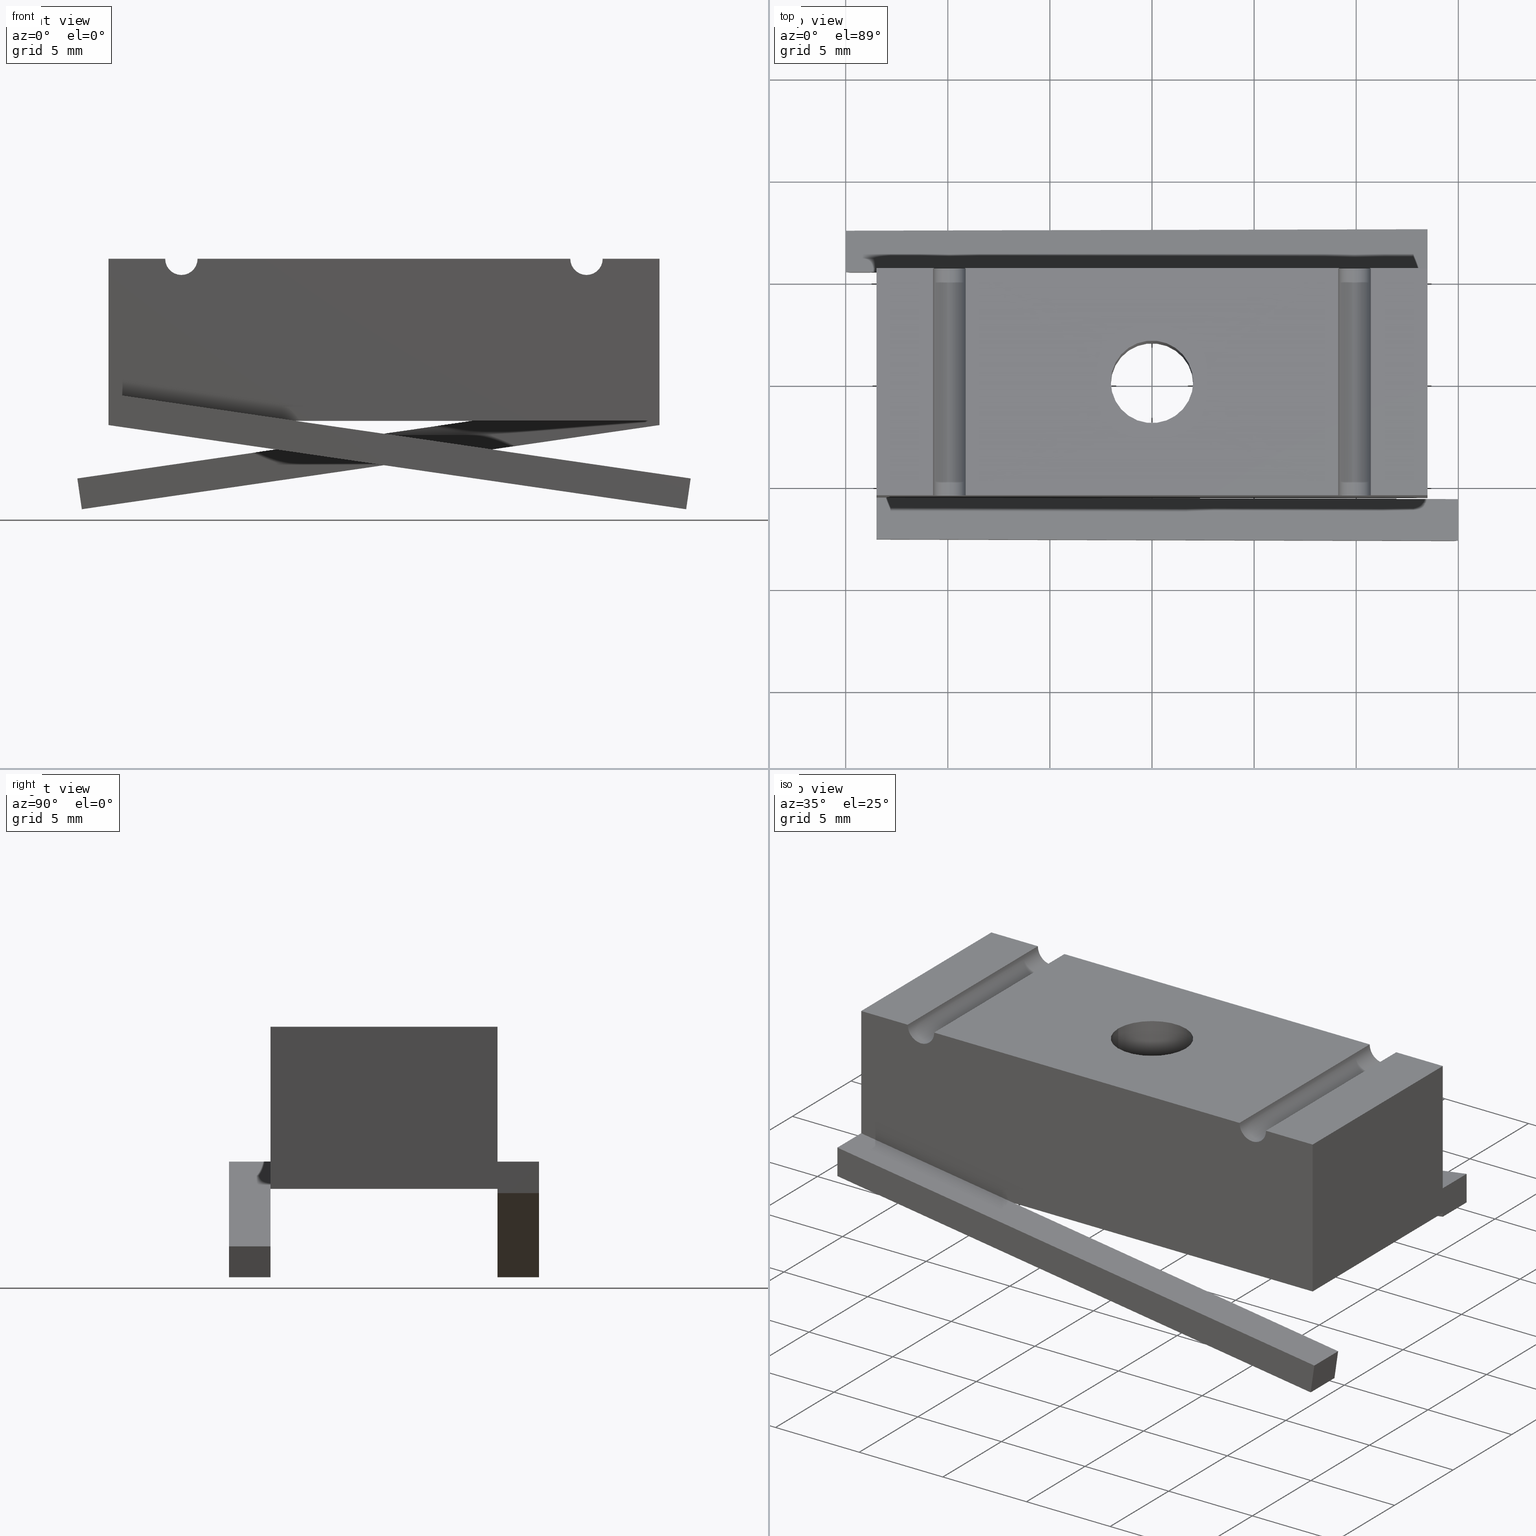
[diagram: canonical four-view strip — front | top / right | iso, engineering-drawing reading convention]
A machine part, canonical four-view strip (front | top / right | iso — engineering-drawing reading convention). The complete STEP part file that produces these views, byte-faithful:
ISO-10303-21;
HEADER;
FILE_DESCRIPTION (( 'STEP AP203' ),
    '1' );
FILE_NAME ('3023.STEP',
    '2011-10-10T15:23:38',
    ( 'jgonzalez' ),
    ( '' ),
    'SwSTEP 2.0',
    'SolidWorks 2010',
    '' );
FILE_SCHEMA (( 'CONFIG_CONTROL_DESIGN' ));
ENDSEC;

DATA;
#1 = ADVANCED_FACE ( 'NONE', ( #609 ), #606, .F. ) ;
#2 = ADVANCED_FACE ( 'NONE', ( #602 ), #291, .F. ) ;
#3 = ADVANCED_FACE ( 'NONE', ( #603 ), #808, .F. ) ;
#4 = DIMENSIONAL_EXPONENTS ( 1.000000000000000000, 0.0000000000000000000, 0.0000000000000000000, 0.0000000000000000000, 0.0000000000000000000, 0.0000000000000000000, 0.0000000000000000000 ) ;
#5 = ADVANCED_FACE ( 'NONE', ( #807 ), #298, .F. ) ;
#6 = ADVANCED_FACE ( 'NONE', ( #191 ), #300, .F. ) ;
#7 = ADVANCED_FACE ( 'NONE', ( #604 ), #304, .F. ) ;
#8 = ADVANCED_FACE ( 'NONE', ( #809 ), #308, .T. ) ;
#9 = ADVANCED_FACE ( 'NONE', ( #832 ), #189, .F. ) ;
#10 = ADVANCED_FACE ( 'NONE', ( #831 ), #317, .F. ) ;
#11 = ADVANCED_FACE ( 'NONE', ( #44 ), #46, .F. ) ;
#12 = ADVANCED_FACE ( 'NONE', ( #43 ), #48, .F. ) ;
#13 = ADVANCED_FACE ( 'NONE', ( #45 ), #327, .F. ) ;
#14 = ADVANCED_FACE ( 'NONE', ( #41 ), #329, .T. ) ;
#15 = ADVANCED_FACE ( 'NONE', ( #42 ), #52, .F. ) ;
#16 = ADVANCED_FACE ( 'NONE', ( #47 ), #338, .T. ) ;
#17 = ADVANCED_FACE ( 'NONE', ( #49, #54 ), #337, .F. ) ;
#18 = ADVANCED_FACE ( 'NONE', ( #51 ), #343, .T. ) ;
#19 = ADVANCED_FACE ( 'NONE', ( #55 ), #348, .T. ) ;
#20 = ADVANCED_FACE ( 'NONE', ( #53 ), #352, .F. ) ;
#21 = ADVANCED_FACE ( 'NONE', ( #56 ), #356, .F. ) ;
#22 = ADVANCED_FACE ( 'NONE', ( #50 ), #360, .T. ) ;
#23 = ADVANCED_FACE ( 'NONE', ( #57 ), #364, .T. ) ;
#24 = ADVANCED_FACE ( 'NONE', ( #58 ), #368, .T. ) ;
#25 = ADVANCED_FACE ( 'NONE', ( #60, #810 ), #371, .T. ) ;
#26 = APPROVAL_DATE_TIME ( #238, #750 ) ;
#27 = PERSON_AND_ORGANIZATION ( #243, #219 ) ;
#28 = PERSON_AND_ORGANIZATION ( #243, #219 ) ;
#29 = PERSON_AND_ORGANIZATION ( #243, #219 ) ;
#30 = COORDINATED_UNIVERSAL_TIME_OFFSET ( 5, 0, .BEHIND. ) ;
#31 = LOCAL_TIME ( 11, 23, 38.00000000000000000, #30 ) ;
#32 = CALENDAR_DATE ( 2011, 10, 10 ) ;
#33 = DATE_AND_TIME ( #32, #31 ) ;
#34 = PERSON_AND_ORGANIZATION ( #243, #219 ) ;
#35 = APPROVAL_PERSON_ORGANIZATION ( #34, #743, #581 ) ;
#36 = COORDINATED_UNIVERSAL_TIME_OFFSET ( 5, 0, .BEHIND. ) ;
#37 = LOCAL_TIME ( 11, 23, 38.00000000000000000, #36 ) ;
#38 = CALENDAR_DATE ( 2011, 10, 10 ) ;
#39 = DATE_AND_TIME ( #38, #37 ) ;
#40 = APPROVAL_DATE_TIME ( #39, #743 ) ;
#41 = FACE_OUTER_BOUND ( 'NONE', #195, .T. ) ;
#42 = FACE_OUTER_BOUND ( 'NONE', #607, .T. ) ;
#43 = FACE_OUTER_BOUND ( 'NONE', #611, .T. ) ;
#44 = FACE_OUTER_BOUND ( 'NONE', #608, .T. ) ;
#45 = FACE_OUTER_BOUND ( 'NONE', #207, .T. ) ;
#46 = CYLINDRICAL_SURFACE ( 'NONE', #713, 0.07949999999999969600 ) ;
#47 = FACE_OUTER_BOUND ( 'NONE', #196, .T. ) ;
#48 = CYLINDRICAL_SURFACE ( 'NONE', #708, 0.03124999999999997900 ) ;
#49 = FACE_BOUND ( 'NONE', #199, .T. ) ;
#50 = FACE_OUTER_BOUND ( 'NONE', #612, .T. ) ;
#51 = FACE_OUTER_BOUND ( 'NONE', #197, .T. ) ;
#52 = CYLINDRICAL_SURFACE ( 'NONE', #760, 0.03124999999999997900 ) ;
#53 = FACE_OUTER_BOUND ( 'NONE', #193, .T. ) ;
#54 = FACE_OUTER_BOUND ( 'NONE', #201, .T. ) ;
#55 = FACE_OUTER_BOUND ( 'NONE', #208, .T. ) ;
#56 = FACE_OUTER_BOUND ( 'NONE', #204, .T. ) ;
#57 = FACE_OUTER_BOUND ( 'NONE', #192, .T. ) ;
#58 = FACE_OUTER_BOUND ( 'NONE', #610, .T. ) ;
#59 = LINE ( 'NONE', #418, #811 ) ;
#60 = FACE_BOUND ( 'NONE', #615, .T. ) ;
#61 = ORIENTED_EDGE ( 'NONE', *, *, #651, .T. ) ;
#62 = ORIENTED_EDGE ( 'NONE', *, *, #702, .T. ) ;
#63 = ORIENTED_EDGE ( 'NONE', *, *, #670, .T. ) ;
#64 = ORIENTED_EDGE ( 'NONE', *, *, #700, .T. ) ;
#65 = ORIENTED_EDGE ( 'NONE', *, *, #679, .F. ) ;
#66 = ORIENTED_EDGE ( 'NONE', *, *, #690, .F. ) ;
#67 = ORIENTED_EDGE ( 'NONE', *, *, #674, .F. ) ;
#68 = ORIENTED_EDGE ( 'NONE', *, *, #689, .F. ) ;
#69 = ORIENTED_EDGE ( 'NONE', *, *, #738, .F. ) ;
#70 = ORIENTED_EDGE ( 'NONE', *, *, #680, .T. ) ;
#71 = ORIENTED_EDGE ( 'NONE', *, *, #689, .T. ) ;
#72 = ORIENTED_EDGE ( 'NONE', *, *, #657, .T. ) ;
#73 = ORIENTED_EDGE ( 'NONE', *, *, #692, .T. ) ;
#74 = ORIENTED_EDGE ( 'NONE', *, *, #740, .F. ) ;
#75 = ORIENTED_EDGE ( 'NONE', *, *, #684, .F. ) ;
#76 = ORIENTED_EDGE ( 'NONE', *, *, #671, .T. ) ;
#77 = ORIENTED_EDGE ( 'NONE', *, *, #714, .T. ) ;
#78 = ORIENTED_EDGE ( 'NONE', *, *, #693, .T. ) ;
#79 = ORIENTED_EDGE ( 'NONE', *, *, #731, .T. ) ;
#80 = ORIENTED_EDGE ( 'NONE', *, *, #652, .T. ) ;
#81 = ORIENTED_EDGE ( 'NONE', *, *, #649, .T. ) ;
#82 = ORIENTED_EDGE ( 'NONE', *, *, #701, .T. ) ;
#83 = ORIENTED_EDGE ( 'NONE', *, *, #655, .F. ) ;
#84 = ORIENTED_EDGE ( 'NONE', *, *, #653, .T. ) ;
#85 = ORIENTED_EDGE ( 'NONE', *, *, #698, .T. ) ;
#86 = ORIENTED_EDGE ( 'NONE', *, *, #650, .T. ) ;
#87 = ORIENTED_EDGE ( 'NONE', *, *, #709, .T. ) ;
#88 = ORIENTED_EDGE ( 'NONE', *, *, #686, .F. ) ;
#89 = ORIENTED_EDGE ( 'NONE', *, *, #738, .T. ) ;
#90 = ORIENTED_EDGE ( 'NONE', *, *, #664, .F. ) ;
#91 = ORIENTED_EDGE ( 'NONE', *, *, #648, .T. ) ;
#92 = ORIENTED_EDGE ( 'NONE', *, *, #731, .F. ) ;
#93 = ORIENTED_EDGE ( 'NONE', *, *, #687, .T. ) ;
#94 = ORIENTED_EDGE ( 'NONE', *, *, #656, .F. ) ;
#95 = ORIENTED_EDGE ( 'NONE', *, *, #701, .F. ) ;
#96 = ORIENTED_EDGE ( 'NONE', *, *, #704, .T. ) ;
#97 = ORIENTED_EDGE ( 'NONE', *, *, #674, .T. ) ;
#98 = ORIENTED_EDGE ( 'NONE', *, *, #663, .T. ) ;
#99 = ORIENTED_EDGE ( 'NONE', *, *, #695, .T. ) ;
#100 = ORIENTED_EDGE ( 'NONE', *, *, #691, .T. ) ;
#101 = ORIENTED_EDGE ( 'NONE', *, *, #669, .F. ) ;
#102 = ORIENTED_EDGE ( 'NONE', *, *, #675, .F. ) ;
#103 = ORIENTED_EDGE ( 'NONE', *, *, #685, .T. ) ;
#104 = ORIENTED_EDGE ( 'NONE', *, *, #678, .F. ) ;
#105 = ORIENTED_EDGE ( 'NONE', *, *, #658, .F. ) ;
#106 = ORIENTED_EDGE ( 'NONE', *, *, #688, .F. ) ;
#107 = ORIENTED_EDGE ( 'NONE', *, *, #688, .T. ) ;
#108 = ORIENTED_EDGE ( 'NONE', *, *, #660, .F. ) ;
#109 = ORIENTED_EDGE ( 'NONE', *, *, #699, .F. ) ;
#110 = ORIENTED_EDGE ( 'NONE', *, *, #649, .F. ) ;
#111 = ORIENTED_EDGE ( 'NONE', *, *, #681, .T. ) ;
#112 = ORIENTED_EDGE ( 'NONE', *, *, #658, .T. ) ;
#113 = ORIENTED_EDGE ( 'NONE', *, *, #665, .T. ) ;
#114 = ORIENTED_EDGE ( 'NONE', *, *, #666, .F. ) ;
#115 = ORIENTED_EDGE ( 'NONE', *, *, #704, .F. ) ;
#116 = ORIENTED_EDGE ( 'NONE', *, *, #702, .F. ) ;
#117 = ORIENTED_EDGE ( 'NONE', *, *, #699, .T. ) ;
#118 = ORIENTED_EDGE ( 'NONE', *, *, #678, .T. ) ;
#119 = ORIENTED_EDGE ( 'NONE', *, *, #700, .F. ) ;
#120 = ORIENTED_EDGE ( 'NONE', *, *, #664, .T. ) ;
#121 = ORIENTED_EDGE ( 'NONE', *, *, #680, .F. ) ;
#122 = ORIENTED_EDGE ( 'NONE', *, *, #663, .F. ) ;
#123 = ORIENTED_EDGE ( 'NONE', *, *, #692, .F. ) ;
#124 = ORIENTED_EDGE ( 'NONE', *, *, #714, .F. ) ;
#125 = ORIENTED_EDGE ( 'NONE', *, *, #707, .T. ) ;
#126 = ORIENTED_EDGE ( 'NONE', *, *, #669, .T. ) ;
#127 = ORIENTED_EDGE ( 'NONE', *, *, #681, .F. ) ;
#128 = ORIENTED_EDGE ( 'NONE', *, *, #657, .F. ) ;
#129 = ORIENTED_EDGE ( 'NONE', *, *, #696, .F. ) ;
#130 = ORIENTED_EDGE ( 'NONE', *, *, #698, .F. ) ;
#131 = ORIENTED_EDGE ( 'NONE', *, *, #660, .T. ) ;
#132 = ORIENTED_EDGE ( 'NONE', *, *, #672, .T. ) ;
#133 = ORIENTED_EDGE ( 'NONE', *, *, #693, .F. ) ;
#134 = ORIENTED_EDGE ( 'NONE', *, *, #696, .T. ) ;
#135 = ORIENTED_EDGE ( 'NONE', *, *, #737, .T. ) ;
#136 = ORIENTED_EDGE ( 'NONE', *, *, #684, .T. ) ;
#137 = ORIENTED_EDGE ( 'NONE', *, *, #666, .T. ) ;
#138 = ORIENTED_EDGE ( 'NONE', *, *, #679, .T. ) ;
#139 = ORIENTED_EDGE ( 'NONE', *, *, #655, .T. ) ;
#140 = ORIENTED_EDGE ( 'NONE', *, *, #652, .F. ) ;
#141 = ORIENTED_EDGE ( 'NONE', *, *, #676, .F. ) ;
#142 = ORIENTED_EDGE ( 'NONE', *, *, #686, .T. ) ;
#143 = ORIENTED_EDGE ( 'NONE', *, *, #683, .T. ) ;
#144 = ORIENTED_EDGE ( 'NONE', *, *, #690, .T. ) ;
#145 = ORIENTED_EDGE ( 'NONE', *, *, #661, .F. ) ;
#146 = ORIENTED_EDGE ( 'NONE', *, *, #675, .T. ) ;
#147 = ORIENTED_EDGE ( 'NONE', *, *, #687, .F. ) ;
#148 = ORIENTED_EDGE ( 'NONE', *, *, #654, .F. ) ;
#149 = ORIENTED_EDGE ( 'NONE', *, *, #672, .F. ) ;
#150 = ORIENTED_EDGE ( 'NONE', *, *, #694, .T. ) ;
#151 = ORIENTED_EDGE ( 'NONE', *, *, #729, .T. ) ;
#152 = ORIENTED_EDGE ( 'NONE', *, *, #691, .F. ) ;
#153 = ORIENTED_EDGE ( 'NONE', *, *, #654, .T. ) ;
#154 = ORIENTED_EDGE ( 'NONE', *, *, #651, .F. ) ;
#155 = ORIENTED_EDGE ( 'NONE', *, *, #659, .T. ) ;
#156 = ORIENTED_EDGE ( 'NONE', *, *, #670, .F. ) ;
#157 = ORIENTED_EDGE ( 'NONE', *, *, #694, .F. ) ;
#158 = ORIENTED_EDGE ( 'NONE', *, *, #650, .F. ) ;
#159 = ORIENTED_EDGE ( 'NONE', *, *, #707, .F. ) ;
#160 = ORIENTED_EDGE ( 'NONE', *, *, #662, .F. ) ;
#161 = ORIENTED_EDGE ( 'NONE', *, *, #703, .F. ) ;
#162 = ORIENTED_EDGE ( 'NONE', *, *, #729, .F. ) ;
#163 = ORIENTED_EDGE ( 'NONE', *, *, #682, .T. ) ;
#164 = ORIENTED_EDGE ( 'NONE', *, *, #661, .T. ) ;
#165 = ORIENTED_EDGE ( 'NONE', *, *, #667, .F. ) ;
#166 = ORIENTED_EDGE ( 'NONE', *, *, #709, .F. ) ;
#167 = ORIENTED_EDGE ( 'NONE', *, *, #653, .F. ) ;
#168 = ORIENTED_EDGE ( 'NONE', *, *, #716, .F. ) ;
#169 = ORIENTED_EDGE ( 'NONE', *, *, #685, .F. ) ;
#170 = ORIENTED_EDGE ( 'NONE', *, *, #737, .F. ) ;
#171 = ORIENTED_EDGE ( 'NONE', *, *, #682, .F. ) ;
#172 = ORIENTED_EDGE ( 'NONE', *, *, #659, .F. ) ;
#173 = ORIENTED_EDGE ( 'NONE', *, *, #671, .F. ) ;
#174 = ORIENTED_EDGE ( 'NONE', *, *, #667, .T. ) ;
#175 = ORIENTED_EDGE ( 'NONE', *, *, #668, .T. ) ;
#176 = ORIENTED_EDGE ( 'NONE', *, *, #715, .F. ) ;
#177 = ORIENTED_EDGE ( 'NONE', *, *, #683, .F. ) ;
#178 = ORIENTED_EDGE ( 'NONE', *, *, #668, .F. ) ;
#179 = ORIENTED_EDGE ( 'NONE', *, *, #716, .T. ) ;
#180 = ORIENTED_EDGE ( 'NONE', *, *, #648, .F. ) ;
#181 = ORIENTED_EDGE ( 'NONE', *, *, #703, .T. ) ;
#182 = ORIENTED_EDGE ( 'NONE', *, *, #665, .F. ) ;
#183 = ORIENTED_EDGE ( 'NONE', *, *, #656, .T. ) ;
#184 = ORIENTED_EDGE ( 'NONE', *, *, #662, .T. ) ;
#185 = ORIENTED_EDGE ( 'NONE', *, *, #740, .T. ) ;
#186 = ORIENTED_EDGE ( 'NONE', *, *, #715, .T. ) ;
#187 = ORIENTED_EDGE ( 'NONE', *, *, #695, .F. ) ;
#188 = ORIENTED_EDGE ( 'NONE', *, *, #676, .T. ) ;
#189 = CYLINDRICAL_SURFACE ( 'NONE', #719, 0.03124999999999997900 ) ;
#190 = CLOSED_SHELL ( 'NONE', ( #1, #15, #12, #25, #24, #22, #23, #14, #16, #17, #18, #2, #7, #20, #5, #8, #9, #3, #6, #10, #21, #13, #19, #11 ) ) ;
#191 = FACE_OUTER_BOUND ( 'NONE', #205, .T. ) ;
#192 = EDGE_LOOP ( 'NONE', ( #180, #179, #97, #128, #129, #130, #124, #122, #119, #114, #178 ) ) ;
#193 = EDGE_LOOP ( 'NONE', ( #120, #102, #108, #113 ) ) ;
#194 = EDGE_LOOP ( 'NONE', ( #150, #151, #147, #149, #146 ) ) ;
#195 = EDGE_LOOP ( 'NONE', ( #148, #145, #135, #126, #127, #123, #79, #175 ) ) ;
#196 = EDGE_LOOP ( 'NONE', ( #152, #156, #158, #159, #160, #161, #162, #163, #164, #165, #166 ) ) ;
#197 = EDGE_LOOP ( 'NONE', ( #173, #174, #153, #137 ) ) ;
#198 = EDGE_LOOP ( 'NONE', ( #142, #143, #131, #132 ) ) ;
#199 = EDGE_LOOP ( 'NONE', ( #188, #186 ) ) ;
#200 = EDGE_LOOP ( 'NONE', ( #154, #155, #157, #90, #94 ) ) ;
#201 = EDGE_LOOP ( 'NONE', ( #167, #168, #169, #170, #171, #172 ) ) ;
#202 = EDGE_LOOP ( 'NONE', ( #121, #98, #99, #100 ) ) ;
#203 = EDGE_LOOP ( 'NONE', ( #183, #182, #177, #144 ) ) ;
#204 = EDGE_LOOP ( 'NONE', ( #112, #115, #116, #117 ) ) ;
#205 = EDGE_LOOP ( 'NONE', ( #101, #103, #104, #105, #106 ) ) ;
#206 = EDGE_LOOP ( 'NONE', ( #133, #134, #136, #125 ) ) ;
#207 = EDGE_LOOP ( 'NONE', ( #118, #91, #92, #95, #96 ) ) ;
#208 = EDGE_LOOP ( 'NONE', ( #73, #81, #62, #82 ) ) ;
#209 = EDGE_LOOP ( 'NONE', ( #107, #109, #110, #111 ) ) ;
#210 = LINE ( 'NONE', #551, #211 ) ;
#211 = VECTOR ( 'NONE', #552, 39.37007874015748100 ) ;
#212 = LINE ( 'NONE', #553, #213 ) ;
#213 = VECTOR ( 'NONE', #554, 39.37007874015748100 ) ;
#214 = LINE ( 'NONE', #555, #215 ) ;
#215 = VECTOR ( 'NONE', #556, 39.37007874015748100 ) ;
#216 = LENGTH_MEASURE_WITH_UNIT ( LENGTH_MEASURE( 0.02539999999999999900 ), #544 );
#217 =( GEOMETRIC_REPRESENTATION_CONTEXT ( 3 ) GLOBAL_UNCERTAINTY_ASSIGNED_CONTEXT ( ( #241 ) ) GLOBAL_UNIT_ASSIGNED_CONTEXT ( ( #557, #558, #559 ) ) REPRESENTATION_CONTEXT ( 'NONE', 'WORKASPACE' ) );
#218 = SHAPE_DEFINITION_REPRESENTATION ( #582, #239 ) ;
#219 = ORGANIZATION ( 'UNSPECIFIED', 'UNSPECIFIED', '' ) ;
#220 = PERSON_AND_ORGANIZATION ( #243, #219 ) ;
#221 = PERSON_AND_ORGANIZATION ( #243, #219 ) ;
#222 = APPROVAL_PERSON_ORGANIZATION ( #221, #755, #570 ) ;
#223 = COORDINATED_UNIVERSAL_TIME_OFFSET ( 5, 0, .BEHIND. ) ;
#224 = LOCAL_TIME ( 11, 23, 38.00000000000000000, #223 ) ;
#225 = CALENDAR_DATE ( 2011, 10, 10 ) ;
#226 = DATE_AND_TIME ( #225, #224 ) ;
#227 = APPROVAL_DATE_TIME ( #226, #755 ) ;
#228 = PERSON_AND_ORGANIZATION ( #243, #219 ) ;
#229 = COORDINATED_UNIVERSAL_TIME_OFFSET ( 5, 0, .BEHIND. ) ;
#230 = LOCAL_TIME ( 11, 23, 38.00000000000000000, #229 ) ;
#231 = CALENDAR_DATE ( 2011, 10, 10 ) ;
#232 = DATE_AND_TIME ( #231, #230 ) ;
#233 = PERSON_AND_ORGANIZATION ( #243, #219 ) ;
#234 = APPROVAL_PERSON_ORGANIZATION ( #233, #750, #574 ) ;
#235 = COORDINATED_UNIVERSAL_TIME_OFFSET ( 5, 0, .BEHIND. ) ;
#236 = LOCAL_TIME ( 11, 23, 38.00000000000000000, #235 ) ;
#237 = CALENDAR_DATE ( 2011, 10, 10 ) ;
#238 = DATE_AND_TIME ( #237, #236 ) ;
#239 = ADVANCED_BREP_SHAPE_REPRESENTATION ( '3023', ( #240, #758 ), #217 ) ;
#240 = MANIFOLD_SOLID_BREP ( '#10-32 Tapped Hole1', #190 ) ;
#241 = UNCERTAINTY_MEASURE_WITH_UNIT (LENGTH_MEASURE( 1.000000000000000100E-005 ), #557, 'distance_accuracy_value', 'NONE');
#242 = PRODUCT ( '3023', '3023', '', ( #565 ) ) ;
#243 = PERSON ( 'UNSPECIFIED', 'UNSPECIFIED', 'UNSPECIFIED', ('UNSPECIFIED'), ('UNSPECIFIED'), ('UNSPECIFIED') ) ;
#244 = DIRECTION ( 'NONE',  ( 1.000000000000000000, 0.0000000000000000000, 0.0000000000000000000 ) ) ;
#245 = DIRECTION ( 'NONE',  ( -0.0000000000000000000, -0.0000000000000000000, 1.000000000000000000 ) ) ;
#246 = CARTESIAN_POINT ( 'NONE',  ( 0.3903750000000000800, 0.2187509842519684800, 0.0000000000000000000 ) ) ;
#247 = CARTESIAN_POINT ( 'NONE',  ( 0.0000000000000000000, 0.0000000000000000000, 0.0000000000000000000 ) ) ;
#248 = VERTEX_POINT ( 'NONE', #379 ) ;
#249 = VERTEX_POINT ( 'NONE', #381 ) ;
#250 = VERTEX_POINT ( 'NONE', #376 ) ;
#251 = VERTEX_POINT ( 'NONE', #382 ) ;
#252 = VERTEX_POINT ( 'NONE', #375 ) ;
#253 = VERTEX_POINT ( 'NONE', #383 ) ;
#254 = VERTEX_POINT ( 'NONE', #367 ) ;
#255 = VERTEX_POINT ( 'NONE', #384 ) ;
#256 = VERTEX_POINT ( 'NONE', #380 ) ;
#257 = VERTEX_POINT ( 'NONE', #385 ) ;
#258 = VERTEX_POINT ( 'NONE', #386 ) ;
#259 = VERTEX_POINT ( 'NONE', #387 ) ;
#260 = VERTEX_POINT ( 'NONE', #388 ) ;
#261 = VERTEX_POINT ( 'NONE', #389 ) ;
#262 = VERTEX_POINT ( 'NONE', #390 ) ;
#263 = VERTEX_POINT ( 'NONE', #391 ) ;
#264 = VERTEX_POINT ( 'NONE', #392 ) ;
#265 = VERTEX_POINT ( 'NONE', #393 ) ;
#266 = VERTEX_POINT ( 'NONE', #394 ) ;
#267 = VERTEX_POINT ( 'NONE', #395 ) ;
#268 = VERTEX_POINT ( 'NONE', #396 ) ;
#269 = VERTEX_POINT ( 'NONE', #397 ) ;
#270 = VERTEX_POINT ( 'NONE', #398 ) ;
#271 = VERTEX_POINT ( 'NONE', #399 ) ;
#272 = VERTEX_POINT ( 'NONE', #400 ) ;
#273 = VERTEX_POINT ( 'NONE', #401 ) ;
#274 = VERTEX_POINT ( 'NONE', #402 ) ;
#275 = VERTEX_POINT ( 'NONE', #403 ) ;
#276 = VERTEX_POINT ( 'NONE', #404 ) ;
#277 = VERTEX_POINT ( 'NONE', #405 ) ;
#278 = VERTEX_POINT ( 'NONE', #406 ) ;
#279 = VERTEX_POINT ( 'NONE', #407 ) ;
#280 = VERTEX_POINT ( 'NONE', #408 ) ;
#281 = VERTEX_POINT ( 'NONE', #409 ) ;
#282 = VERTEX_POINT ( 'NONE', #410 ) ;
#283 = VERTEX_POINT ( 'NONE', #411 ) ;
#284 = VERTEX_POINT ( 'NONE', #412 ) ;
#285 = VERTEX_POINT ( 'NONE', #413 ) ;
#286 = VERTEX_POINT ( 'NONE', #414 ) ;
#287 = VERTEX_POINT ( 'NONE', #415 ) ;
#288 = VERTEX_POINT ( 'NONE', #416 ) ;
#289 = VERTEX_POINT ( 'NONE', #417 ) ;
#290 = CARTESIAN_POINT ( 'NONE',  ( -0.5312499999999997800, -0.2187499999999999400, -0.3206331384499130900 ) ) ;
#291 = PLANE ( 'NONE',  #762 ) ;
#292 = DIRECTION ( 'NONE',  ( 0.0000000000000000000, 0.0000000000000000000, -1.000000000000000000 ) ) ;
#293 = DIRECTION ( 'NONE',  ( -0.0000000000000000000, -1.000000000000000000, -0.0000000000000000000 ) ) ;
#294 = DIRECTION ( 'NONE',  ( 0.0000000000000000000, -1.000000000000000000, 0.0000000000000000000 ) ) ;
#295 = DIRECTION ( 'NONE',  ( 0.0000000000000000000, -0.0000000000000000000, -1.000000000000000000 ) ) ;
#296 = CARTESIAN_POINT ( 'NONE',  ( -0.5312499999999998900, -0.2987499999999999600, -0.2600000000000000100 ) ) ;
#297 = CARTESIAN_POINT ( 'NONE',  ( 0.5826018371384011900, -0.2987499999999999600, -0.4828734728571544800 ) ) ;
#298 = PLANE ( 'NONE',  #735 ) ;
#299 = CARTESIAN_POINT ( 'NONE',  ( 0.5312499999999995600, 0.2187500000000000300, -0.3206331384499130900 ) ) ;
#300 = PLANE ( 'NONE',  #730 ) ;
#301 = DIRECTION ( 'NONE',  ( -0.1441360476933149800, 0.0000000000000000000, -0.9895578809525750200 ) ) ;
#302 = DIRECTION ( 'NONE',  ( -0.9895578809525749100, 0.0000000000000000000, 0.1441360476933149500 ) ) ;
#303 = CARTESIAN_POINT ( 'NONE',  ( -0.5312499999999997800, -0.2987499999999999600, -0.3206331384499130900 ) ) ;
#304 = PLANE ( 'NONE',  #724 ) ;
#305 = DIRECTION ( 'NONE',  ( 0.0000000000000000000, 1.000000000000000000, 0.0000000000000000000 ) ) ;
#306 = DIRECTION ( 'NONE',  ( 0.0000000000000000000, -0.0000000000000000000, 1.000000000000000000 ) ) ;
#307 = DIRECTION ( 'NONE',  ( 0.0000000000000000000, 0.0000000000000000000, -1.000000000000000000 ) ) ;
#308 = PLANE ( 'NONE',  #720 ) ;
#309 = DIRECTION ( 'NONE',  ( 0.1441360476933148700, 0.0000000000000000000, 0.9895578809525750200 ) ) ;
#310 = DIRECTION ( 'NONE',  ( 0.9895578809525749100, 0.0000000000000000000, -0.1441360476933148400 ) ) ;
#311 = CARTESIAN_POINT ( 'NONE',  ( -0.3906250000000000000, 0.2187509842519684800, 0.0000000000000000000 ) ) ;
#312 = DIRECTION ( 'NONE',  ( -0.0000000000000000000, -1.000000000000000000, -0.0000000000000000000 ) ) ;
#313 = DIRECTION ( 'NONE',  ( 0.0000000000000000000, -1.000000000000000000, 0.0000000000000000000 ) ) ;
#314 = DIRECTION ( 'NONE',  ( 0.0000000000000000000, -0.0000000000000000000, -1.000000000000000000 ) ) ;
#315 = CARTESIAN_POINT ( 'NONE',  ( -0.5826018371384010800, 0.2987500000000000200, -0.4828734728571544800 ) ) ;
#316 = CARTESIAN_POINT ( 'NONE',  ( 0.0000000000000000000, 0.0000000000000000000, 0.0000000000000000000 ) ) ;
#317 = PLANE ( 'NONE',  #718 ) ;
#318 = DIRECTION ( 'NONE',  ( 1.000000000000000000, 0.0000000000000000000, 0.0000000000000000000 ) ) ;
#319 = DIRECTION ( 'NONE',  ( -0.0000000000000000000, -0.0000000000000000000, 1.000000000000000000 ) ) ;
#320 = DIRECTION ( 'NONE',  ( -0.1441360476933148700, 0.0000000000000000000, 0.9895578809525750200 ) ) ;
#321 = DIRECTION ( 'NONE',  ( 0.9895578809525749100, 0.0000000000000000000, 0.1441360476933148400 ) ) ;
#322 = DIRECTION ( 'NONE',  ( 0.0000000000000000000, 0.0000000000000000000, -1.000000000000000000 ) ) ;
#323 = CARTESIAN_POINT ( 'NONE',  ( 0.5312500000000000000, 0.2987500000000000200, -0.2600000000000000100 ) ) ;
#324 = DIRECTION ( 'NONE',  ( -0.0000000000000000000, -1.000000000000000000, -0.0000000000000000000 ) ) ;
#325 = CARTESIAN_POINT ( 'NONE',  ( -0.3906250000000000000, 0.2187509842519684800, 0.0000000000000000000 ) ) ;
#326 = DIRECTION ( 'NONE',  ( 0.0000000000000000000, 0.0000000000000000000, -1.000000000000000000 ) ) ;
#327 = PLANE ( 'NONE',  #717 ) ;
#328 = CARTESIAN_POINT ( 'NONE',  ( 0.5312500000000000000, 0.2187500000000000300, -0.3125000000000000000 ) ) ;
#329 = PLANE ( 'NONE',  #761 ) ;
#330 = DIRECTION ( 'NONE',  ( 0.1441360476933149800, 0.0000000000000000000, -0.9895578809525750200 ) ) ;
#331 = DIRECTION ( 'NONE',  ( -0.9895578809525749100, 0.0000000000000000000, -0.1441360476933149500 ) ) ;
#332 = CARTESIAN_POINT ( 'NONE',  ( 0.3903750000000000800, 0.2187509842519684800, 0.0000000000000000000 ) ) ;
#333 = DIRECTION ( 'NONE',  ( -0.0000000000000000000, -1.000000000000000000, -0.0000000000000000000 ) ) ;
#334 = DIRECTION ( 'NONE',  ( 1.000000000000000000, 3.122111992759158000E-016, -0.0000000000000000000 ) ) ;
#335 = DIRECTION ( 'NONE',  ( -3.122111992759158000E-016, 1.000000000000000000, 0.0000000000000000000 ) ) ;
#336 = CARTESIAN_POINT ( 'NONE',  ( -0.5312499999999998900, -0.2187499999999999400, -0.3125000000000000000 ) ) ;
#337 = PLANE ( 'NONE',  #710 ) ;
#338 = PLANE ( 'NONE',  #705 ) ;
#339 = CARTESIAN_POINT ( 'NONE',  ( 0.5312499999999995600, 0.2987500000000000200, -0.3206331384499130900 ) ) ;
#340 = CARTESIAN_POINT ( 'NONE',  ( -0.5312499999999998900, -0.2187499999999999400, -0.3125000000000000000 ) ) ;
#341 = DIRECTION ( 'NONE',  ( 0.0000000000000000000, -1.000000000000000000, 0.0000000000000000000 ) ) ;
#342 = DIRECTION ( 'NONE',  ( 0.0000000000000000000, -0.0000000000000000000, -1.000000000000000000 ) ) ;
#343 = PLANE ( 'NONE',  #728 ) ;
#344 = CARTESIAN_POINT ( 'NONE',  ( -0.5312499999999998900, -0.2187499999999999400, 0.0000000000000000000 ) ) ;
#345 = DIRECTION ( 'NONE',  ( -0.0000000000000000000, 0.0000000000000000000, 1.000000000000000000 ) ) ;
#346 = DIRECTION ( 'NONE',  ( 1.000000000000000000, 0.0000000000000000000, 0.0000000000000000000 ) ) ;
#347 = CARTESIAN_POINT ( 'NONE',  ( 0.5912500000000000500, -0.2987499999999999600, -0.4234999999999999900 ) ) ;
#348 = PLANE ( 'NONE',  #725 ) ;
#349 = DIRECTION ( 'NONE',  ( -0.0000000000000000000, 0.0000000000000000000, 1.000000000000000000 ) ) ;
#350 = DIRECTION ( 'NONE',  ( 1.000000000000000000, 0.0000000000000000000, 0.0000000000000000000 ) ) ;
#351 = CARTESIAN_POINT ( 'NONE',  ( -0.5912499999999999400, 0.2987500000000000200, -0.4234999999999999900 ) ) ;
#352 = PLANE ( 'NONE',  #712 ) ;
#353 = DIRECTION ( 'NONE',  ( 0.0000000000000000000, 1.000000000000000000, 0.0000000000000000000 ) ) ;
#354 = DIRECTION ( 'NONE',  ( 0.0000000000000000000, -0.0000000000000000000, 1.000000000000000000 ) ) ;
#355 = CARTESIAN_POINT ( 'NONE',  ( -0.5312500000000000000, 0.2187500000000000300, -0.3125000000000000000 ) ) ;
#356 = PLANE ( 'NONE',  #727 ) ;
#357 = DIRECTION ( 'NONE',  ( -0.9895578809525750200, 0.0000000000000000000, 0.1441360476933143100 ) ) ;
#358 = DIRECTION ( 'NONE',  ( 0.1441360476933142800, 0.0000000000000000000, 0.9895578809525749100 ) ) ;
#359 = CARTESIAN_POINT ( 'NONE',  ( -0.5312500000000000000, 0.2187500000000000300, -0.3125000000000000000 ) ) ;
#360 = PLANE ( 'NONE',  #732 ) ;
#361 = DIRECTION ( 'NONE',  ( 0.9895578809525750200, -0.0000000000000000000, 0.1441360476933143100 ) ) ;
#362 = DIRECTION ( 'NONE',  ( 0.1441360476933142800, 0.0000000000000000000, -0.9895578809525749100 ) ) ;
#363 = CARTESIAN_POINT ( 'NONE',  ( -0.5312499999999998900, -0.2187499999999999400, 0.0000000000000000000 ) ) ;
#364 = PLANE ( 'NONE',  #723 ) ;
#365 = DIRECTION ( 'NONE',  ( -1.000000000000000000, -1.561055996379579000E-016, 0.0000000000000000000 ) ) ;
#366 = DIRECTION ( 'NONE',  ( 1.561055996379579000E-016, -1.000000000000000000, 0.0000000000000000000 ) ) ;
#367 = CARTESIAN_POINT ( 'NONE',  ( -0.3906250000000000000, -0.2187499999999999400, -0.03124999999999997900 ) ) ;
#368 = PLANE ( 'NONE',  #706 ) ;
#369 = DIRECTION ( 'NONE',  ( 0.0000000000000000000, 1.000000000000000000, 0.0000000000000000000 ) ) ;
#370 = DIRECTION ( 'NONE',  ( 0.0000000000000000000, -0.0000000000000000000, 1.000000000000000000 ) ) ;
#371 = PLANE ( 'NONE',  #722 ) ;
#372 = CARTESIAN_POINT ( 'NONE',  ( -0.5312499999999998900, -0.2187499999999999400, 0.0000000000000000000 ) ) ;
#373 = DIRECTION ( 'NONE',  ( -0.0000000000000000000, 0.0000000000000000000, 1.000000000000000000 ) ) ;
#374 = DIRECTION ( 'NONE',  ( 1.000000000000000000, 0.0000000000000000000, 0.0000000000000000000 ) ) ;
#375 = CARTESIAN_POINT ( 'NONE',  ( -0.3906250000000000000, 0.2187500000000000300, -0.03124999999999997900 ) ) ;
#376 = CARTESIAN_POINT ( 'NONE',  ( 0.3903750000000000800, 0.2187500000000000300, -0.03124999999999997900 ) ) ;
#377 = DIRECTION ( 'NONE',  ( -0.0000000000000000000, 0.0000000000000000000, 1.000000000000000000 ) ) ;
#378 = DIRECTION ( 'NONE',  ( 1.000000000000000000, 0.0000000000000000000, 0.0000000000000000000 ) ) ;
#379 = CARTESIAN_POINT ( 'NONE',  ( 0.3903750000000000800, -0.2187499999999999400, -0.03124999999999997900 ) ) ;
#380 = CARTESIAN_POINT ( 'NONE',  ( -0.5312500000000000000, 0.2187500000000000300, -0.3125000000000000000 ) ) ;
#381 = CARTESIAN_POINT ( 'NONE',  ( 0.4216249999999999700, -0.2187499999999999400, 0.0000000000000000000 ) ) ;
#382 = CARTESIAN_POINT ( 'NONE',  ( -0.3593750000000000600, 0.2187500000000000300, 0.0000000000000000000 ) ) ;
#383 = CARTESIAN_POINT ( 'NONE',  ( -0.3593750000000000600, -0.2187499999999999400, 0.0000000000000000000 ) ) ;
#384 = CARTESIAN_POINT ( 'NONE',  ( -0.5312499999999998900, -0.2187499999999999400, 0.0000000000000000000 ) ) ;
#385 = CARTESIAN_POINT ( 'NONE',  ( -0.5312499999999998900, -0.2187499999999999400, -0.3125000000000000000 ) ) ;
#386 = CARTESIAN_POINT ( 'NONE',  ( -0.5312499999999998900, -0.2187499999999999400, -0.3206331384499130900 ) ) ;
#387 = CARTESIAN_POINT ( 'NONE',  ( -0.5312499999999998900, -0.2987499999999999600, -0.3206331384499130900 ) ) ;
#388 = CARTESIAN_POINT ( 'NONE',  ( 0.5312500000000001100, -0.2187499999999999400, -0.3125000000000000000 ) ) ;
#389 = CARTESIAN_POINT ( 'NONE',  ( 0.5312500000000000000, 0.2187500000000000300, -0.3125000000000000000 ) ) ;
#390 = CARTESIAN_POINT ( 'NONE',  ( 0.5312500000000000000, 0.2987500000000000200, -0.3206331384499130900 ) ) ;
#391 = CARTESIAN_POINT ( 'NONE',  ( 0.5312500000000000000, 0.2987500000000000200, -0.2600000000000000100 ) ) ;
#392 = CARTESIAN_POINT ( 'NONE',  ( -0.1708142201834860800, -0.2187499999999999400, -0.3125000000000000000 ) ) ;
#393 = CARTESIAN_POINT ( 'NONE',  ( 0.5312500000000001100, -0.2187499999999999400, 0.0000000000000000000 ) ) ;
#394 = CARTESIAN_POINT ( 'NONE',  ( 0.5312500000000000000, 0.2187500000000000300, -0.3206331384499130900 ) ) ;
#395 = CARTESIAN_POINT ( 'NONE',  ( -0.5312500000000000000, 0.2187500000000000300, 0.0000000000000000000 ) ) ;
#396 = CARTESIAN_POINT ( 'NONE',  ( -0.4218750000000000000, -0.2187499999999999400, 0.0000000000000000000 ) ) ;
#397 = CARTESIAN_POINT ( 'NONE',  ( 0.5312500000000000000, 0.2187500000000000300, -0.2600000000000000100 ) ) ;
#398 = CARTESIAN_POINT ( 'NONE',  ( -0.5312499999999998900, -0.2187499999999999400, -0.2600000000000000100 ) ) ;
#399 = CARTESIAN_POINT ( 'NONE',  ( 0.1708142201834721700, 0.2187500000000000300, -0.3125000000000010500 ) ) ;
#400 = CARTESIAN_POINT ( 'NONE',  ( -0.5312499999999998900, -0.2987499999999999600, -0.2600000000000000100 ) ) ;
#401 = CARTESIAN_POINT ( 'NONE',  ( 0.5312500000000000000, 0.2187500000000000300, 0.0000000000000000000 ) ) ;
#402 = CARTESIAN_POINT ( 'NONE',  ( -0.07949999999999969600, 9.735942053221421000E-018, -0.3125000000000000000 ) ) ;
#403 = CARTESIAN_POINT ( 'NONE',  ( 0.07949999999999969600, 0.0000000000000000000, -0.3125000000000000000 ) ) ;
#404 = CARTESIAN_POINT ( 'NONE',  ( -0.07949999999999951500, 9.735942053221408700E-018, 5.149469717823087000E-017 ) ) ;
#405 = CARTESIAN_POINT ( 'NONE',  ( 0.07949999999999951500, 0.0000000000000000000, 5.149469717823087000E-017 ) ) ;
#406 = CARTESIAN_POINT ( 'NONE',  ( 0.4216250000000000300, 0.2187500000000000300, 0.0000000000000000000 ) ) ;
#407 = CARTESIAN_POINT ( 'NONE',  ( 0.3591250000000000800, -0.2187499999999999400, 0.0000000000000000000 ) ) ;
#408 = CARTESIAN_POINT ( 'NONE',  ( -0.4218750000000000000, 0.2187500000000000300, 0.0000000000000000000 ) ) ;
#409 = CARTESIAN_POINT ( 'NONE',  ( 0.3591250000000000800, 0.2187500000000000300, 0.0000000000000000000 ) ) ;
#410 = CARTESIAN_POINT ( 'NONE',  ( 0.5912500000000000500, -0.2187499999999999400, -0.4234999999999999900 ) ) ;
#411 = CARTESIAN_POINT ( 'NONE',  ( 0.5826018371384011900, -0.2187499999999999400, -0.4828734728571544800 ) ) ;
#412 = CARTESIAN_POINT ( 'NONE',  ( 0.5826018371384011900, -0.2987499999999999600, -0.4828734728571544800 ) ) ;
#413 = CARTESIAN_POINT ( 'NONE',  ( 0.5912500000000000500, -0.2987499999999999600, -0.4234999999999999900 ) ) ;
#414 = CARTESIAN_POINT ( 'NONE',  ( -0.5912499999999999400, 0.2187500000000000300, -0.4234999999999999900 ) ) ;
#415 = CARTESIAN_POINT ( 'NONE',  ( -0.5826018371384010800, 0.2187500000000000300, -0.4828734728571544800 ) ) ;
#416 = CARTESIAN_POINT ( 'NONE',  ( -0.5826018371384010800, 0.2987500000000000200, -0.4828734728571544800 ) ) ;
#417 = CARTESIAN_POINT ( 'NONE',  ( -0.5912499999999999400, 0.2987500000000000200, -0.4234999999999999900 ) ) ;
#418 = CARTESIAN_POINT ( 'NONE',  ( 0.5312500000000000000, 0.2187500000000000300, -0.2600000000000000100 ) ) ;
#419 = DIRECTION ( 'NONE',  ( 0.9895578809525748000, -0.0000000000000000000, 0.1441360476933149500 ) ) ;
#420 = CARTESIAN_POINT ( 'NONE',  ( -0.5826018371384010800, 0.2987500000000000200, -0.4828734728571544800 ) ) ;
#421 = CARTESIAN_POINT ( 'NONE',  ( -0.5312499999999998900, -0.2187499999999999400, -0.3206331384499130900 ) ) ;
#422 = DIRECTION ( 'NONE',  ( -0.9895578809525749100, -0.0000000000000000000, -0.1441360476933148400 ) ) ;
#423 = CARTESIAN_POINT ( 'NONE',  ( -0.3906250000000000000, -0.2187499999999999400, 0.0000000000000000000 ) ) ;
#424 = DIRECTION ( 'NONE',  ( 0.0000000000000000000, -1.000000000000000000, 0.0000000000000000000 ) ) ;
#425 = DIRECTION ( 'NONE',  ( 0.0000000000000000000, 0.0000000000000000000, -1.000000000000000000 ) ) ;
#426 = CARTESIAN_POINT ( 'NONE',  ( -0.07949999999999969600, 9.735942053221421000E-018, 0.0000000000000000000 ) ) ;
#427 = DIRECTION ( 'NONE',  ( -0.0000000000000000000, -0.0000000000000000000, -1.000000000000000000 ) ) ;
#428 = CARTESIAN_POINT ( 'NONE',  ( -0.5312500000000000000, 0.2187500000000000300, -0.3125000000000000000 ) ) ;
#429 = DIRECTION ( 'NONE',  ( -0.0000000000000000000, -0.0000000000000000000, 1.000000000000000000 ) ) ;
#430 = CARTESIAN_POINT ( 'NONE',  ( 0.07949999999999969600, 0.0000000000000000000, 0.0000000000000000000 ) ) ;
#431 = DIRECTION ( 'NONE',  ( 1.561055996379579000E-016, -1.000000000000000000, 0.0000000000000000000 ) ) ;
#432 = CARTESIAN_POINT ( 'NONE',  ( 0.5312500000000000000, 0.2187500000000000300, 0.0000000000000000000 ) ) ;
#433 = DIRECTION ( 'NONE',  ( -3.122111992759158000E-016, 1.000000000000000000, -0.0000000000000000000 ) ) ;
#434 = CARTESIAN_POINT ( 'NONE',  ( 0.5826018371384011900, -0.2187499999999999400, -0.4828734728571544800 ) ) ;
#435 = DIRECTION ( 'NONE',  ( -0.0000000000000000000, -0.0000000000000000000, 1.000000000000000000 ) ) ;
#436 = CARTESIAN_POINT ( 'NONE',  ( -0.5312500000000000000, 0.2187500000000000300, 0.0000000000000000000 ) ) ;
#437 = DIRECTION ( 'NONE',  ( 0.9895578809525749100, -0.0000000000000000000, -0.1441360476933148100 ) ) ;
#438 = CARTESIAN_POINT ( 'NONE',  ( -0.5912499999999999400, 0.2187500000000000300, -0.4234999999999999900 ) ) ;
#439 = DIRECTION ( 'NONE',  ( -1.000000000000000000, -0.0000000000000000000, -0.0000000000000000000 ) ) ;
#440 = CARTESIAN_POINT ( 'NONE',  ( -0.5312499999999998900, -0.2187499999999999400, -0.3125000000000000000 ) ) ;
#441 = DIRECTION ( 'NONE',  ( -0.1441360476933142800, -0.0000000000000000000, 0.9895578809525749100 ) ) ;
#442 = CARTESIAN_POINT ( 'NONE',  ( 0.5912500000000000500, -0.2987499999999999600, -0.4234999999999999900 ) ) ;
#443 = DIRECTION ( 'NONE',  ( 1.000000000000000000, 0.0000000000000000000, 0.0000000000000000000 ) ) ;
#444 = CARTESIAN_POINT ( 'NONE',  ( 0.5312500000000001100, -0.2187499999999999400, -0.3125000000000000000 ) ) ;
#445 = DIRECTION ( 'NONE',  ( 0.1441360476933142800, -0.0000000000000000000, 0.9895578809525749100 ) ) ;
#446 = CARTESIAN_POINT ( 'NONE',  ( -0.5312499999999998900, -0.2187499999999999400, 0.0000000000000000000 ) ) ;
#447 = CARTESIAN_POINT ( 'NONE',  ( 0.5912500000000000500, -0.2187499999999999400, -0.4234999999999999900 ) ) ;
#448 = DIRECTION ( 'NONE',  ( 0.0000000000000000000, 0.0000000000000000000, 1.000000000000000000 ) ) ;
#449 = CARTESIAN_POINT ( 'NONE',  ( 0.3903750000000000800, 0.2187500000000000300, 0.0000000000000000000 ) ) ;
#450 = DIRECTION ( 'NONE',  ( 1.000000000000000000, 0.0000000000000000000, 0.0000000000000000000 ) ) ;
#451 = DIRECTION ( 'NONE',  ( 0.0000000000000000000, 1.000000000000000000, 0.0000000000000000000 ) ) ;
#452 = DIRECTION ( 'NONE',  ( 0.0000000000000000000, 0.0000000000000000000, 1.000000000000000000 ) ) ;
#453 = CARTESIAN_POINT ( 'NONE',  ( 0.5826018371384011900, -0.2987499999999999600, -0.4828734728571544800 ) ) ;
#454 = DIRECTION ( 'NONE',  ( 0.1441360476933142800, -0.0000000000000000000, 0.9895578809525749100 ) ) ;
#455 = CARTESIAN_POINT ( 'NONE',  ( 0.5312500000000000000, 0.2187500000000000300, -0.3206331384499130900 ) ) ;
#456 = DIRECTION ( 'NONE',  ( -0.0000000000000000000, 1.000000000000000000, -0.0000000000000000000 ) ) ;
#457 = CARTESIAN_POINT ( 'NONE',  ( -0.5312500000000000000, 0.2187500000000000300, 0.0000000000000000000 ) ) ;
#458 = DIRECTION ( 'NONE',  ( -1.000000000000000000, -0.0000000000000000000, -0.0000000000000000000 ) ) ;
#459 = CARTESIAN_POINT ( 'NONE',  ( -0.5312499999999998900, -0.2187499999999999400, 0.0000000000000000000 ) ) ;
#460 = DIRECTION ( 'NONE',  ( 1.000000000000000000, 0.0000000000000000000, 0.0000000000000000000 ) ) ;
#461 = CARTESIAN_POINT ( 'NONE',  ( 0.5312500000000000000, 0.2187500000000000300, -0.3125000000000000000 ) ) ;
#462 = DIRECTION ( 'NONE',  ( 0.0000000000000000000, 0.0000000000000000000, 1.000000000000000000 ) ) ;
#463 = CARTESIAN_POINT ( 'NONE',  ( 0.4216250000000000300, 0.2187509842519684800, 0.0000000000000000000 ) ) ;
#464 = DIRECTION ( 'NONE',  ( -0.0000000000000000000, -0.0000000000000000000, -1.000000000000000000 ) ) ;
#465 = CARTESIAN_POINT ( 'NONE',  ( -0.5312499999999998900, -0.2187499999999999400, 0.0000000000000000000 ) ) ;
#466 = DIRECTION ( 'NONE',  ( 1.000000000000000000, 0.0000000000000000000, 0.0000000000000000000 ) ) ;
#467 = CARTESIAN_POINT ( 'NONE',  ( -0.5312499999999998900, -0.2987499999999999600, -0.2600000000000000100 ) ) ;
#468 = DIRECTION ( 'NONE',  ( 0.0000000000000000000, 1.000000000000000000, 0.0000000000000000000 ) ) ;
#469 = CARTESIAN_POINT ( 'NONE',  ( 0.5912500000000000500, -0.2987499999999999600, -0.4234999999999999900 ) ) ;
#470 = DIRECTION ( 'NONE',  ( -0.9895578809525749100, -0.0000000000000000000, 0.1441360476933149500 ) ) ;
#471 = CARTESIAN_POINT ( 'NONE',  ( -0.5312500000000000000, 0.2187500000000000300, -0.3125000000000000000 ) ) ;
#472 = DIRECTION ( 'NONE',  ( 0.0000000000000000000, 0.0000000000000000000, 1.000000000000000000 ) ) ;
#473 = CARTESIAN_POINT ( 'NONE',  ( -0.5312499999999998900, -0.2187499999999999400, -0.3125000000000000000 ) ) ;
#474 = CARTESIAN_POINT ( 'NONE',  ( 0.5312500000000000000, 0.2187500000000000300, -0.2600000000000000100 ) ) ;
#475 = DIRECTION ( 'NONE',  ( -0.0000000000000000000, 1.000000000000000000, -0.0000000000000000000 ) ) ;
#476 = CARTESIAN_POINT ( 'NONE',  ( 0.0000000000000000000, 0.0000000000000000000, -0.3125000000000000000 ) ) ;
#477 = DIRECTION ( 'NONE',  ( -0.0000000000000000000, 0.0000000000000000000, 1.000000000000000000 ) ) ;
#478 = DIRECTION ( 'NONE',  ( 1.000000000000000000, 0.0000000000000000000, 0.0000000000000000000 ) ) ;
#479 = CARTESIAN_POINT ( 'NONE',  ( 0.0000000000000000000, 0.0000000000000000000, 5.149469717823087000E-017 ) ) ;
#480 = DIRECTION ( 'NONE',  ( 0.9895578809525748000, -0.0000000000000000000, 0.1441360476933149500 ) ) ;
#481 = DIRECTION ( 'NONE',  ( -0.0000000000000000000, -0.0000000000000000000, 1.000000000000000000 ) ) ;
#482 = DIRECTION ( 'NONE',  ( 1.000000000000000000, 0.0000000000000000000, 0.0000000000000000000 ) ) ;
#483 = CARTESIAN_POINT ( 'NONE',  ( 0.3903750000000000800, 0.2187509842519684800, -0.03124999999999997900 ) ) ;
#484 = DIRECTION ( 'NONE',  ( -0.0000000000000000000, -1.000000000000000000, -0.0000000000000000000 ) ) ;
#485 = CARTESIAN_POINT ( 'NONE',  ( 0.5312500000000000000, 0.2987500000000000200, -0.3206331384499130900 ) ) ;
#486 = DIRECTION ( 'NONE',  ( -0.0000000000000000000, -1.000000000000000000, -0.0000000000000000000 ) ) ;
#487 = CARTESIAN_POINT ( 'NONE',  ( -0.5312500000000000000, 0.2187500000000000300, -0.3125000000000000000 ) ) ;
#488 = DIRECTION ( 'NONE',  ( 1.000000000000000000, 0.0000000000000000000, 0.0000000000000000000 ) ) ;
#489 = CARTESIAN_POINT ( 'NONE',  ( 0.5826018371384011900, -0.2987499999999999600, -0.4828734728571544800 ) ) ;
#490 = DIRECTION ( 'NONE',  ( 0.9895578809525749100, -0.0000000000000000000, -0.1441360476933148100 ) ) ;
#491 = CARTESIAN_POINT ( 'NONE',  ( -0.4218750000000000000, 0.2187509842519684800, 0.0000000000000000000 ) ) ;
#492 = DIRECTION ( 'NONE',  ( -0.0000000000000000000, -1.000000000000000000, -0.0000000000000000000 ) ) ;
#493 = CARTESIAN_POINT ( 'NONE',  ( -0.5312499999999998900, -0.2987499999999999600, -0.3206331384499130900 ) ) ;
#494 = CARTESIAN_POINT ( 'NONE',  ( 0.3903750000000000800, -0.2187499999999999400, 0.0000000000000000000 ) ) ;
#495 = DIRECTION ( 'NONE',  ( -1.000000000000000000, -0.0000000000000000000, -0.0000000000000000000 ) ) ;
#496 = CARTESIAN_POINT ( 'NONE',  ( 0.0000000000000000000, 0.0000000000000000000, 5.149469717823087000E-017 ) ) ;
#497 = DIRECTION ( 'NONE',  ( -0.0000000000000000000, -0.0000000000000000000, -1.000000000000000000 ) ) ;
#498 = CARTESIAN_POINT ( 'NONE',  ( -0.5312499999999998900, -0.2987499999999999600, -0.2600000000000000100 ) ) ;
#499 = DIRECTION ( 'NONE',  ( -0.0000000000000000000, 1.000000000000000000, -0.0000000000000000000 ) ) ;
#500 = CARTESIAN_POINT ( 'NONE',  ( -0.5826018371384010800, 0.2187500000000000300, -0.4828734728571544800 ) ) ;
#501 = DIRECTION ( 'NONE',  ( -0.9895578809525749100, -0.0000000000000000000, -0.1441360476933148400 ) ) ;
#502 = CARTESIAN_POINT ( 'NONE',  ( -0.3906250000000000000, 0.2187500000000000300, 0.0000000000000000000 ) ) ;
#503 = DIRECTION ( 'NONE',  ( -0.0000000000000000000, -0.0000000000000000000, 1.000000000000000000 ) ) ;
#504 = DIRECTION ( 'NONE',  ( 1.000000000000000000, 0.0000000000000000000, 0.0000000000000000000 ) ) ;
#505 = CARTESIAN_POINT ( 'NONE',  ( -0.5312499999999998900, -0.2987499999999999600, -0.3206331384499130900 ) ) ;
#506 = DIRECTION ( 'NONE',  ( -0.0000000000000000000, 1.000000000000000000, -0.0000000000000000000 ) ) ;
#507 = CARTESIAN_POINT ( 'NONE',  ( -0.3906250000000000000, 0.2187500000000000300, 0.0000000000000000000 ) ) ;
#508 = DIRECTION ( 'NONE',  ( 0.0000000000000000000, -1.000000000000000000, 0.0000000000000000000 ) ) ;
#509 = DIRECTION ( 'NONE',  ( 0.0000000000000000000, 0.0000000000000000000, -1.000000000000000000 ) ) ;
#510 = CARTESIAN_POINT ( 'NONE',  ( 0.5312500000000000000, 0.2987500000000000200, -0.3206331384499130900 ) ) ;
#511 = DIRECTION ( 'NONE',  ( -0.0000000000000000000, -0.0000000000000000000, -1.000000000000000000 ) ) ;
#512 = CARTESIAN_POINT ( 'NONE',  ( -0.3906250000000000000, 0.2187509842519684800, -0.03124999999999997900 ) ) ;
#513 = DIRECTION ( 'NONE',  ( -0.0000000000000000000, -1.000000000000000000, -0.0000000000000000000 ) ) ;
#514 = CARTESIAN_POINT ( 'NONE',  ( -0.5312499999999998900, -0.2187499999999999400, -0.2600000000000000100 ) ) ;
#515 = DIRECTION ( 'NONE',  ( -0.9895578809525749100, -0.0000000000000000000, 0.1441360476933149500 ) ) ;
#516 = CARTESIAN_POINT ( 'NONE',  ( 0.3591250000000000800, 0.2187509842519684800, 0.0000000000000000000 ) ) ;
#517 = DIRECTION ( 'NONE',  ( -0.0000000000000000000, -1.000000000000000000, -0.0000000000000000000 ) ) ;
#518 = CARTESIAN_POINT ( 'NONE',  ( 0.3903750000000000800, 0.2187500000000000300, 0.0000000000000000000 ) ) ;
#519 = DIRECTION ( 'NONE',  ( 0.0000000000000000000, 1.000000000000000000, 0.0000000000000000000 ) ) ;
#520 = DIRECTION ( 'NONE',  ( 0.0000000000000000000, 0.0000000000000000000, 1.000000000000000000 ) ) ;
#521 = CARTESIAN_POINT ( 'NONE',  ( -0.3906250000000000000, -0.2187499999999999400, 0.0000000000000000000 ) ) ;
#522 = DIRECTION ( 'NONE',  ( 0.0000000000000000000, 1.000000000000000000, 0.0000000000000000000 ) ) ;
#523 = DIRECTION ( 'NONE',  ( 0.0000000000000000000, 0.0000000000000000000, 1.000000000000000000 ) ) ;
#524 = CARTESIAN_POINT ( 'NONE',  ( -0.5826018371384010800, 0.2987500000000000200, -0.4828734728571544800 ) ) ;
#525 = DIRECTION ( 'NONE',  ( -0.0000000000000000000, -1.000000000000000000, -0.0000000000000000000 ) ) ;
#526 = CARTESIAN_POINT ( 'NONE',  ( 0.3903750000000000800, -0.2187499999999999400, 0.0000000000000000000 ) ) ;
#527 = DIRECTION ( 'NONE',  ( 0.0000000000000000000, 1.000000000000000000, 0.0000000000000000000 ) ) ;
#528 = DIRECTION ( 'NONE',  ( 0.0000000000000000000, 0.0000000000000000000, 1.000000000000000000 ) ) ;
#529 = CARTESIAN_POINT ( 'NONE',  ( 0.5312500000000000000, 0.2987500000000000200, -0.2600000000000000100 ) ) ;
#530 = DIRECTION ( 'NONE',  ( 0.9895578809525748000, -0.0000000000000000000, 0.1441360476933149500 ) ) ;
#531 = CARTESIAN_POINT ( 'NONE',  ( -0.5912499999999999400, 0.2987500000000000200, -0.4234999999999999900 ) ) ;
#532 = DIRECTION ( 'NONE',  ( -0.1441360476933142800, -0.0000000000000000000, 0.9895578809525749100 ) ) ;
#533 = CARTESIAN_POINT ( 'NONE',  ( -0.5312499999999998900, -0.2187499999999999400, -0.3125000000000000000 ) ) ;
#534 = DIRECTION ( 'NONE',  ( 0.0000000000000000000, 0.0000000000000000000, 1.000000000000000000 ) ) ;
#535 = CARTESIAN_POINT ( 'NONE',  ( -0.5912499999999999400, 0.2987500000000000200, -0.4234999999999999900 ) ) ;
#536 = DIRECTION ( 'NONE',  ( -0.0000000000000000000, -1.000000000000000000, -0.0000000000000000000 ) ) ;
#537 = CARTESIAN_POINT ( 'NONE',  ( 0.0000000000000000000, 0.0000000000000000000, -0.3125000000000000000 ) ) ;
#538 = DIRECTION ( 'NONE',  ( 0.0000000000000000000, -1.000000000000000000, 0.0000000000000000000 ) ) ;
#539 = DIRECTION ( 'NONE',  ( 0.0000000000000000000, 0.0000000000000000000, -1.000000000000000000 ) ) ;
#540 = DIRECTION ( 'NONE',  ( 0.0000000000000000000, -1.000000000000000000, 0.0000000000000000000 ) ) ;
#541 = DIRECTION ( 'NONE',  ( 0.0000000000000000000, 0.0000000000000000000, -1.000000000000000000 ) ) ;
#542 = CARTESIAN_POINT ( 'NONE',  ( -0.5312500000000000000, 0.2187500000000000300, 0.0000000000000000000 ) ) ;
#543 = DIRECTION ( 'NONE',  ( -1.000000000000000000, -0.0000000000000000000, -0.0000000000000000000 ) ) ;
#544 =( LENGTH_UNIT ( ) NAMED_UNIT ( * ) SI_UNIT ( $, .METRE. ) );
#545 = DIRECTION ( 'NONE',  ( -0.0000000000000000000, 0.0000000000000000000, 1.000000000000000000 ) ) ;
#546 = DIRECTION ( 'NONE',  ( 1.000000000000000000, 0.0000000000000000000, 0.0000000000000000000 ) ) ;
#547 = CARTESIAN_POINT ( 'NONE',  ( -0.5312500000000000000, 0.2187500000000000300, -0.3125000000000000000 ) ) ;
#548 = DIRECTION ( 'NONE',  ( -0.9895578809525749100, -0.0000000000000000000, 0.1441360476933149500 ) ) ;
#549 = CARTESIAN_POINT ( 'NONE',  ( 0.5312500000000000000, 0.2987500000000000200, -0.2600000000000000100 ) ) ;
#550 = DIRECTION ( 'NONE',  ( -0.0000000000000000000, -1.000000000000000000, -0.0000000000000000000 ) ) ;
#551 = CARTESIAN_POINT ( 'NONE',  ( 0.5312500000000000000, 0.2187500000000000300, -0.3125000000000000000 ) ) ;
#552 = DIRECTION ( 'NONE',  ( -3.122111992759158000E-016, 1.000000000000000000, -0.0000000000000000000 ) ) ;
#553 = CARTESIAN_POINT ( 'NONE',  ( -0.3593750000000000600, 0.2187509842519684800, 0.0000000000000000000 ) ) ;
#554 = DIRECTION ( 'NONE',  ( 0.0000000000000000000, 1.000000000000000000, 0.0000000000000000000 ) ) ;
#555 = CARTESIAN_POINT ( 'NONE',  ( -0.5312500000000000000, 0.2187500000000000300, 0.0000000000000000000 ) ) ;
#556 = DIRECTION ( 'NONE',  ( 1.561055996379579000E-016, -1.000000000000000000, 0.0000000000000000000 ) ) ;
#557 =( CONVERSION_BASED_UNIT ( 'INCH', #216 ) LENGTH_UNIT ( ) NAMED_UNIT ( #4 ) );
#558 =( NAMED_UNIT ( * ) PLANE_ANGLE_UNIT ( ) SI_UNIT ( $, .RADIAN. ) );
#559 =( NAMED_UNIT ( * ) SI_UNIT ( $, .STERADIAN. ) SOLID_ANGLE_UNIT ( ) );
#560 = CARTESIAN_POINT ( 'NONE',  ( 0.0000000000000000000, 0.0000000000000000000, 0.0000000000000000000 ) ) ;
#561 = DIRECTION ( 'NONE',  ( 0.0000000000000000000, 0.0000000000000000000, 1.000000000000000000 ) ) ;
#562 = DIRECTION ( 'NONE',  ( 1.000000000000000000, 0.0000000000000000000, 0.0000000000000000000 ) ) ;
#563 = APPLICATION_CONTEXT ( 'configuration controlled 3d designs of mechanical parts and assemblies' ) ;
#564 = APPLICATION_PROTOCOL_DEFINITION ( 'international standard', 'config_control_design', 1994, #563 ) ;
#565 = MECHANICAL_CONTEXT ( 'NONE', #563, 'mechanical' ) ;
#566 = PERSON_AND_ORGANIZATION_ROLE ( 'design_owner' ) ;
#567 = APPLICATION_CONTEXT ( 'configuration controlled 3d designs of mechanical parts and assemblies' ) ;
#568 = APPLICATION_PROTOCOL_DEFINITION ( 'international standard', 'config_control_design', 1994, #567 ) ;
#569 = APPROVAL_STATUS ( 'not_yet_approved' ) ;
#570 = APPROVAL_ROLE ( '' ) ;
#571 = PERSON_AND_ORGANIZATION_ROLE ( 'creator' ) ;
#572 = DATE_TIME_ROLE ( 'creation_date' ) ;
#573 = APPROVAL_STATUS ( 'not_yet_approved' ) ;
#574 = APPROVAL_ROLE ( '' ) ;
#575 = PERSON_AND_ORGANIZATION_ROLE ( 'creator' ) ;
#576 = PERSON_AND_ORGANIZATION_ROLE ( 'design_supplier' ) ;
#577 = SECURITY_CLASSIFICATION_LEVEL ( 'unclassified' ) ;
#578 = PERSON_AND_ORGANIZATION_ROLE ( 'classification_officer' ) ;
#579 = DATE_TIME_ROLE ( 'classification_date' ) ;
#580 = APPROVAL_STATUS ( 'not_yet_approved' ) ;
#581 = APPROVAL_ROLE ( '' ) ;
#582 = PRODUCT_DEFINITION_SHAPE ( 'NONE', 'NONE',  #756 ) ;
#583 = DESIGN_CONTEXT ( 'detailed design', #567, 'design' ) ;
#584 = LINE ( 'NONE', #461, #585 ) ;
#585 = VECTOR ( 'NONE', #462, 39.37007874015748100 ) ;
#586 = VECTOR ( 'NONE', #464, 39.37007874015748100 ) ;
#587 = LINE ( 'NONE', #469, #595 ) ;
#588 = LINE ( 'NONE', #465, #589 ) ;
#589 = VECTOR ( 'NONE', #466, 39.37007874015748100 ) ;
#590 = VECTOR ( 'NONE', #468, 39.37007874015748100 ) ;
#591 = VECTOR ( 'NONE', #470, 39.37007874015748900 ) ;
#592 = LINE ( 'NONE', #487, #798 ) ;
#593 = LINE ( 'NONE', #471, #594 ) ;
#594 = VECTOR ( 'NONE', #472, 39.37007874015748100 ) ;
#595 = VECTOR ( 'NONE', #475, 39.37007874015748100 ) ;
#596 = VECTOR ( 'NONE', #480, 39.37007874015748900 ) ;
#597 = LINE ( 'NONE', #483, #598 ) ;
#598 = VECTOR ( 'NONE', #484, 39.37007874015748100 ) ;
#599 = LINE ( 'NONE', #474, #596 ) ;
#600 = CIRCLE ( 'NONE', #733, 0.07949999999999969600 ) ;
#601 = LINE ( 'NONE', #493, #800 ) ;
#602 = FACE_OUTER_BOUND ( 'NONE', #200, .T. ) ;
#603 = FACE_OUTER_BOUND ( 'NONE', #202, .T. ) ;
#604 = FACE_OUTER_BOUND ( 'NONE', #203, .T. ) ;
#605 = LINE ( 'NONE', #430, #825 ) ;
#606 = CYLINDRICAL_SURFACE ( 'NONE', #764, 0.07949999999999969600 ) ;
#607 = EDGE_LOOP ( 'NONE', ( #64, #70, #87, #76 ) ) ;
#608 = EDGE_LOOP ( 'NONE', ( #140, #141, #139, #138 ) ) ;
#609 = FACE_OUTER_BOUND ( 'NONE', #613, .T. ) ;
#610 = EDGE_LOOP ( 'NONE', ( #75, #72, #185, #184 ) ) ;
#611 = EDGE_LOOP ( 'NONE', ( #85, #78, #86, #89 ) ) ;
#612 = EDGE_LOOP ( 'NONE', ( #74, #67, #84, #61, #66, #88, #93, #181 ) ) ;
#613 = EDGE_LOOP ( 'NONE', ( #176, #80, #71, #83 ) ) ;
#614 = EDGE_LOOP ( 'NONE', ( #187, #77, #69, #63 ) ) ;
#615 = EDGE_LOOP ( 'NONE', ( #65, #68 ) ) ;
#616 = VECTOR ( 'NONE', #511, 39.37007874015748100 ) ;
#617 = CIRCLE ( 'NONE', #673, 0.07949999999999951500 ) ;
#618 = LINE ( 'NONE', #524, #627 ) ;
#619 = CIRCLE ( 'NONE', #721, 0.03124999999999997900 ) ;
#620 = LINE ( 'NONE', #512, #621 ) ;
#621 = VECTOR ( 'NONE', #513, 39.37007874015748100 ) ;
#622 = LINE ( 'NONE', #514, #623 ) ;
#623 = VECTOR ( 'NONE', #515, 39.37007874015748900 ) ;
#624 = LINE ( 'NONE', #516, #625 ) ;
#625 = VECTOR ( 'NONE', #517, 39.37007874015748100 ) ;
#626 = LINE ( 'NONE', #529, #629 ) ;
#627 = VECTOR ( 'NONE', #525, 39.37007874015748100 ) ;
#628 = CIRCLE ( 'NONE', #734, 0.03124999999999997900 ) ;
#629 = VECTOR ( 'NONE', #530, 39.37007874015748900 ) ;
#630 = CIRCLE ( 'NONE', #677, 0.03124999999999997900 ) ;
#631 = LINE ( 'NONE', #542, #640 ) ;
#632 = CIRCLE ( 'NONE', #763, 0.03124999999999997900 ) ;
#633 = LINE ( 'NONE', #531, #634 ) ;
#634 = VECTOR ( 'NONE', #532, 39.37007874015748900 ) ;
#635 = LINE ( 'NONE', #533, #636 ) ;
#636 = VECTOR ( 'NONE', #534, 39.37007874015748100 ) ;
#637 = LINE ( 'NONE', #535, #638 ) ;
#638 = VECTOR ( 'NONE', #536, 39.37007874015748100 ) ;
#639 = LINE ( 'NONE', #547, #642 ) ;
#640 = VECTOR ( 'NONE', #543, 39.37007874015748100 ) ;
#641 = CIRCLE ( 'NONE', #697, 0.03124999999999997900 ) ;
#642 = VECTOR ( 'NONE', #786, 39.37007874015748100 ) ;
#643 = CIRCLE ( 'NONE', #759, 0.03124999999999997900 ) ;
#644 = CIRCLE ( 'NONE', #726, 0.07949999999999969600 ) ;
#645 = LINE ( 'NONE', #787, #646 ) ;
#646 = VECTOR ( 'NONE', #548, 39.37007874015748900 ) ;
#647 = LINE ( 'NONE', #549, #806 ) ;
#648 = EDGE_CURVE ( 'NONE', #271, #269, #59, .T. ) ;
#649 = EDGE_CURVE ( 'NONE', #262, #288, #813, .T. ) ;
#650 = EDGE_CURVE ( 'NONE', #254, #253, #818, .T. ) ;
#651 = EDGE_CURVE ( 'NONE', #257, #258, #817, .T. ) ;
#652 = EDGE_CURVE ( 'NONE', #274, #276, #816, .T. ) ;
#653 = EDGE_CURVE ( 'NONE', #256, #257, #815, .T. ) ;
#654 = EDGE_CURVE ( 'NONE', #265, #273, #823, .T. ) ;
#655 = EDGE_CURVE ( 'NONE', #275, #277, #605, .T. ) ;
#656 = EDGE_CURVE ( 'NONE', #258, #283, #820, .T. ) ;
#657 = EDGE_CURVE ( 'NONE', #280, #267, #822, .T. ) ;
#658 = EDGE_CURVE ( 'NONE', #287, #286, #826, .T. ) ;
#659 = EDGE_CURVE ( 'NONE', #257, #264, #828, .T. ) ;
#660 = EDGE_CURVE ( 'NONE', #284, #285, #830, .T. ) ;
#661 = EDGE_CURVE ( 'NONE', #260, #265, #768, .T. ) ;
#662 = EDGE_CURVE ( 'NONE', #255, #268, #770, .T. ) ;
#663 = EDGE_CURVE ( 'NONE', #250, #281, #779, .T. ) ;
#664 = EDGE_CURVE ( 'NONE', #283, #282, #778, .T. ) ;
#665 = EDGE_CURVE ( 'NONE', #284, #283, #776, .T. ) ;
#666 = EDGE_CURVE ( 'NONE', #273, #278, #782, .T. ) ;
#667 = EDGE_CURVE ( 'NONE', #249, #265, #784, .T. ) ;
#668 = EDGE_CURVE ( 'NONE', #269, #273, #584, .T. ) ;
#669 = EDGE_CURVE ( 'NONE', #261, #266, #777, .T. ) ;
#670 = EDGE_CURVE ( 'NONE', #253, #279, #588, .T. ) ;
#671 = EDGE_CURVE ( 'NONE', #249, #278, #772, .T. ) ;
#672 = EDGE_CURVE ( 'NONE', #285, #272, #781, .T. ) ;
#673 = AXIS2_PLACEMENT_3D ( 'NONE', #496, #503, #504 ) ;
#674 = EDGE_CURVE ( 'NONE', #256, #267, #593, .T. ) ;
#675 = EDGE_CURVE ( 'NONE', #285, #282, #587, .T. ) ;
#676 = EDGE_CURVE ( 'NONE', #275, #274, #600, .T. ) ;
#677 = AXIS2_PLACEMENT_3D ( 'NONE', #507, #522, #523 ) ;
#678 = EDGE_CURVE ( 'NONE', #286, #271, #599, .T. ) ;
#679 = EDGE_CURVE ( 'NONE', #277, #276, #789, .T. ) ;
#680 = EDGE_CURVE ( 'NONE', #250, #248, #597, .T. ) ;
#681 = EDGE_CURVE ( 'NONE', #262, #266, #790, .T. ) ;
#682 = EDGE_CURVE ( 'NONE', #264, #260, #788, .T. ) ;
#683 = EDGE_CURVE ( 'NONE', #259, #284, #794, .T. ) ;
#684 = EDGE_CURVE ( 'NONE', #280, #268, #796, .T. ) ;
#685 = EDGE_CURVE ( 'NONE', #261, #271, #592, .T. ) ;
#686 = EDGE_CURVE ( 'NONE', #272, #259, #601, .T. ) ;
#687 = EDGE_CURVE ( 'NONE', #272, #270, #802, .T. ) ;
#688 = EDGE_CURVE ( 'NONE', #266, #287, #804, .T. ) ;
#689 = EDGE_CURVE ( 'NONE', #276, #277, #617, .T. ) ;
#690 = EDGE_CURVE ( 'NONE', #259, #258, #799, .T. ) ;
#691 = EDGE_CURVE ( 'NONE', #279, #248, #619, .T. ) ;
#692 = EDGE_CURVE ( 'NONE', #263, #262, #801, .T. ) ;
#693 = EDGE_CURVE ( 'NONE', #252, #254, #620, .T. ) ;
#694 = EDGE_CURVE ( 'NONE', #282, #264, #622, .T. ) ;
#695 = EDGE_CURVE ( 'NONE', #281, #279, #624, .T. ) ;
#696 = EDGE_CURVE ( 'NONE', #252, #280, #628, .T. ) ;
#697 = AXIS2_PLACEMENT_3D ( 'NONE', #521, #538, #539 ) ;
#698 = EDGE_CURVE ( 'NONE', #251, #252, #630, .T. ) ;
#699 = EDGE_CURVE ( 'NONE', #288, #287, #618, .T. ) ;
#700 = EDGE_CURVE ( 'NONE', #278, #250, #632, .T. ) ;
#701 = EDGE_CURVE ( 'NONE', #289, #263, #626, .T. ) ;
#702 = EDGE_CURVE ( 'NONE', #288, #289, #633, .T. ) ;
#703 = EDGE_CURVE ( 'NONE', #270, #255, #635, .T. ) ;
#704 = EDGE_CURVE ( 'NONE', #289, #286, #637, .T. ) ;
#705 = AXIS2_PLACEMENT_3D ( 'NONE', #336, #341, #342 ) ;
#706 = AXIS2_PLACEMENT_3D ( 'NONE', #363, #373, #374 ) ;
#707 = EDGE_CURVE ( 'NONE', #268, #254, #641, .T. ) ;
#708 = AXIS2_PLACEMENT_3D ( 'NONE', #325, #324, #322 ) ;
#709 = EDGE_CURVE ( 'NONE', #248, #249, #643, .T. ) ;
#710 = AXIS2_PLACEMENT_3D ( 'NONE', #340, #345, #346 ) ;
#711 = AXIS2_PLACEMENT_3D ( 'NONE', #423, #424, #425 ) ;
#712 = AXIS2_PLACEMENT_3D ( 'NONE', #347, #357, #358 ) ;
#713 = AXIS2_PLACEMENT_3D ( 'NONE', #316, #319, #318 ) ;
#714 = EDGE_CURVE ( 'NONE', #281, #251, #631, .T. ) ;
#715 = EDGE_CURVE ( 'NONE', #274, #275, #644, .T. ) ;
#716 = EDGE_CURVE ( 'NONE', #271, #256, #639, .T. ) ;
#717 = AXIS2_PLACEMENT_3D ( 'NONE', #323, #330, #331 ) ;
#718 = AXIS2_PLACEMENT_3D ( 'NONE', #315, #320, #321 ) ;
#719 = AXIS2_PLACEMENT_3D ( 'NONE', #311, #312, #307 ) ;
#720 = AXIS2_PLACEMENT_3D ( 'NONE', #303, #313, #314 ) ;
#721 = AXIS2_PLACEMENT_3D ( 'NONE', #494, #508, #509 ) ;
#722 = AXIS2_PLACEMENT_3D ( 'NONE', #372, #377, #378 ) ;
#723 = AXIS2_PLACEMENT_3D ( 'NONE', #359, #369, #370 ) ;
#724 = AXIS2_PLACEMENT_3D ( 'NONE', #297, #309, #310 ) ;
#725 = AXIS2_PLACEMENT_3D ( 'NONE', #339, #353, #354 ) ;
#726 = AXIS2_PLACEMENT_3D ( 'NONE', #537, #545, #546 ) ;
#727 = AXIS2_PLACEMENT_3D ( 'NONE', #351, #361, #362 ) ;
#728 = AXIS2_PLACEMENT_3D ( 'NONE', #344, #349, #350 ) ;
#729 = EDGE_CURVE ( 'NONE', #264, #270, #645, .T. ) ;
#730 = AXIS2_PLACEMENT_3D ( 'NONE', #299, #305, #306 ) ;
#731 = EDGE_CURVE ( 'NONE', #263, #269, #647, .T. ) ;
#732 = AXIS2_PLACEMENT_3D ( 'NONE', #355, #365, #366 ) ;
#733 = AXIS2_PLACEMENT_3D ( 'NONE', #476, #477, #478 ) ;
#734 = AXIS2_PLACEMENT_3D ( 'NONE', #502, #519, #520 ) ;
#735 = AXIS2_PLACEMENT_3D ( 'NONE', #296, #301, #302 ) ;
#736 = AXIS2_PLACEMENT_3D ( 'NONE', #246, #293, #292 ) ;
#737 = EDGE_CURVE ( 'NONE', #260, #261, #210, .T. ) ;
#738 = EDGE_CURVE ( 'NONE', #253, #251, #212, .T. ) ;
#739 = PRODUCT_RELATED_PRODUCT_CATEGORY ( 'detail', '', ( #242 ) ) ;
#740 = EDGE_CURVE ( 'NONE', #267, #255, #214, .T. ) ;
#741 = CC_DESIGN_SECURITY_CLASSIFICATION ( #746, ( #751 ) ) ;
#742 = CC_DESIGN_APPROVAL ( #743, ( #746 ) ) ;
#743 = APPROVAL ( #580, 'UNSPECIFIED' ) ;
#744 = CC_DESIGN_DATE_AND_TIME_ASSIGNMENT ( #33, #579, ( #746 ) ) ;
#745 = CC_DESIGN_PERSON_AND_ORGANIZATION_ASSIGNMENT ( #29, #578, ( #746 ) ) ;
#746 = SECURITY_CLASSIFICATION ( '', '', #577 ) ;
#747 = CC_DESIGN_PERSON_AND_ORGANIZATION_ASSIGNMENT ( #28, #576, ( #751 ) ) ;
#748 = CC_DESIGN_PERSON_AND_ORGANIZATION_ASSIGNMENT ( #27, #575, ( #751 ) ) ;
#749 = CC_DESIGN_APPROVAL ( #750, ( #751 ) ) ;
#750 = APPROVAL ( #573, 'UNSPECIFIED' ) ;
#751 = PRODUCT_DEFINITION_FORMATION_WITH_SPECIFIED_SOURCE ( 'ANY', '', #242, .NOT_KNOWN. ) ;
#752 = CC_DESIGN_DATE_AND_TIME_ASSIGNMENT ( #232, #572, ( #756 ) ) ;
#753 = CC_DESIGN_PERSON_AND_ORGANIZATION_ASSIGNMENT ( #228, #571, ( #756 ) ) ;
#754 = CC_DESIGN_APPROVAL ( #755, ( #756 ) ) ;
#755 = APPROVAL ( #569, 'UNSPECIFIED' ) ;
#756 = PRODUCT_DEFINITION ( 'UNKNOWN', '', #751, #583 ) ;
#757 = CC_DESIGN_PERSON_AND_ORGANIZATION_ASSIGNMENT ( #220, #566, ( #242 ) ) ;
#758 = AXIS2_PLACEMENT_3D ( 'NONE', #560, #561, #562 ) ;
#759 = AXIS2_PLACEMENT_3D ( 'NONE', #526, #540, #541 ) ;
#760 = AXIS2_PLACEMENT_3D ( 'NONE', #332, #333, #326 ) ;
#761 = AXIS2_PLACEMENT_3D ( 'NONE', #328, #334, #335 ) ;
#762 = AXIS2_PLACEMENT_3D ( 'NONE', #290, #294, #295 ) ;
#763 = AXIS2_PLACEMENT_3D ( 'NONE', #518, #527, #528 ) ;
#764 = AXIS2_PLACEMENT_3D ( 'NONE', #247, #245, #244 ) ;
#765 = AXIS2_PLACEMENT_3D ( 'NONE', #449, #451, #452 ) ;
#766 = AXIS2_PLACEMENT_3D ( 'NONE', #479, #481, #482 ) ;
#767 = VECTOR ( 'NONE', #441, 39.37007874015748900 ) ;
#768 = LINE ( 'NONE', #444, #773 ) ;
#769 = VECTOR ( 'NONE', #443, 39.37007874015748100 ) ;
#770 = LINE ( 'NONE', #446, #775 ) ;
#771 = VECTOR ( 'NONE', #445, 39.37007874015748900 ) ;
#772 = LINE ( 'NONE', #463, #590 ) ;
#773 = VECTOR ( 'NONE', #448, 39.37007874015748100 ) ;
#774 = VECTOR ( 'NONE', #454, 39.37007874015748900 ) ;
#775 = VECTOR ( 'NONE', #450, 39.37007874015748100 ) ;
#776 = LINE ( 'NONE', #453, #780 ) ;
#777 = LINE ( 'NONE', #455, #586 ) ;
#778 = LINE ( 'NONE', #447, #774 ) ;
#779 = CIRCLE ( 'NONE', #765, 0.03124999999999997900 ) ;
#780 = VECTOR ( 'NONE', #456, 39.37007874015748100 ) ;
#781 = LINE ( 'NONE', #467, #591 ) ;
#782 = LINE ( 'NONE', #457, #783 ) ;
#783 = VECTOR ( 'NONE', #458, 39.37007874015748100 ) ;
#784 = LINE ( 'NONE', #459, #785 ) ;
#785 = VECTOR ( 'NONE', #460, 39.37007874015748100 ) ;
#786 = DIRECTION ( 'NONE',  ( -1.000000000000000000, -0.0000000000000000000, -0.0000000000000000000 ) ) ;
#787 = CARTESIAN_POINT ( 'NONE',  ( -0.5312499999999998900, -0.2187499999999999400, -0.2600000000000000100 ) ) ;
#788 = LINE ( 'NONE', #473, #792 ) ;
#789 = CIRCLE ( 'NONE', #766, 0.07949999999999951500 ) ;
#790 = LINE ( 'NONE', #485, #791 ) ;
#791 = VECTOR ( 'NONE', #486, 39.37007874015748100 ) ;
#792 = VECTOR ( 'NONE', #488, 39.37007874015748100 ) ;
#793 = VECTOR ( 'NONE', #506, 39.37007874015748100 ) ;
#794 = LINE ( 'NONE', #489, #795 ) ;
#795 = VECTOR ( 'NONE', #490, 39.37007874015748900 ) ;
#796 = LINE ( 'NONE', #491, #797 ) ;
#797 = VECTOR ( 'NONE', #492, 39.37007874015748100 ) ;
#798 = VECTOR ( 'NONE', #495, 39.37007874015748100 ) ;
#799 = LINE ( 'NONE', #505, #793 ) ;
#800 = VECTOR ( 'NONE', #497, 39.37007874015748100 ) ;
#801 = LINE ( 'NONE', #510, #616 ) ;
#802 = LINE ( 'NONE', #498, #803 ) ;
#803 = VECTOR ( 'NONE', #499, 39.37007874015748100 ) ;
#804 = LINE ( 'NONE', #500, #805 ) ;
#805 = VECTOR ( 'NONE', #501, 39.37007874015748100 ) ;
#806 = VECTOR ( 'NONE', #550, 39.37007874015748100 ) ;
#807 = FACE_OUTER_BOUND ( 'NONE', #194, .T. ) ;
#808 = CYLINDRICAL_SURFACE ( 'NONE', #736, 0.03124999999999997900 ) ;
#809 = FACE_OUTER_BOUND ( 'NONE', #198, .T. ) ;
#810 = FACE_OUTER_BOUND ( 'NONE', #614, .T. ) ;
#811 = VECTOR ( 'NONE', #419, 39.37007874015748900 ) ;
#812 = VECTOR ( 'NONE', #422, 39.37007874015748100 ) ;
#813 = LINE ( 'NONE', #420, #812 ) ;
#814 = VECTOR ( 'NONE', #427, 39.37007874015748100 ) ;
#815 = LINE ( 'NONE', #428, #821 ) ;
#816 = LINE ( 'NONE', #426, #819 ) ;
#817 = LINE ( 'NONE', #421, #814 ) ;
#818 = CIRCLE ( 'NONE', #711, 0.03124999999999997900 ) ;
#819 = VECTOR ( 'NONE', #429, 39.37007874015748100 ) ;
#820 = LINE ( 'NONE', #434, #827 ) ;
#821 = VECTOR ( 'NONE', #431, 39.37007874015748100 ) ;
#822 = LINE ( 'NONE', #436, #829 ) ;
#823 = LINE ( 'NONE', #432, #824 ) ;
#824 = VECTOR ( 'NONE', #433, 39.37007874015748100 ) ;
#825 = VECTOR ( 'NONE', #435, 39.37007874015748100 ) ;
#826 = LINE ( 'NONE', #438, #767 ) ;
#827 = VECTOR ( 'NONE', #437, 39.37007874015748900 ) ;
#828 = LINE ( 'NONE', #440, #769 ) ;
#829 = VECTOR ( 'NONE', #439, 39.37007874015748100 ) ;
#830 = LINE ( 'NONE', #442, #771 ) ;
#831 = FACE_OUTER_BOUND ( 'NONE', #209, .T. ) ;
#832 = FACE_OUTER_BOUND ( 'NONE', #206, .T. ) ;
ENDSEC;
END-ISO-10303-21;
